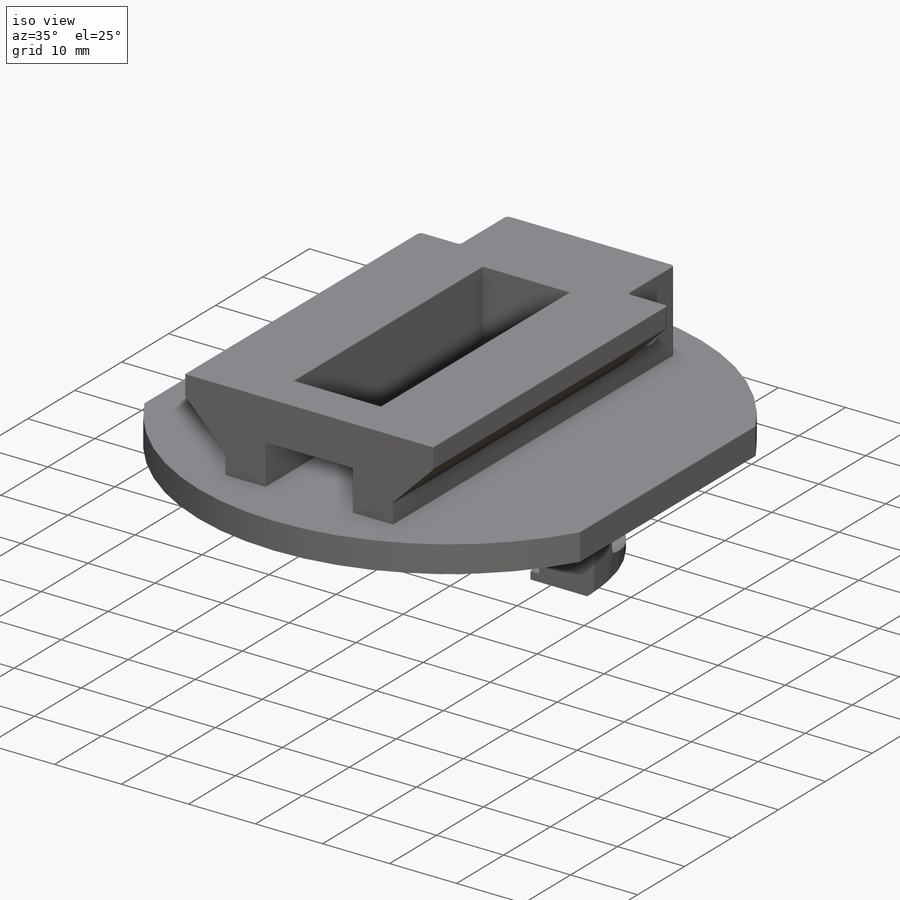
[diagram: iso view]
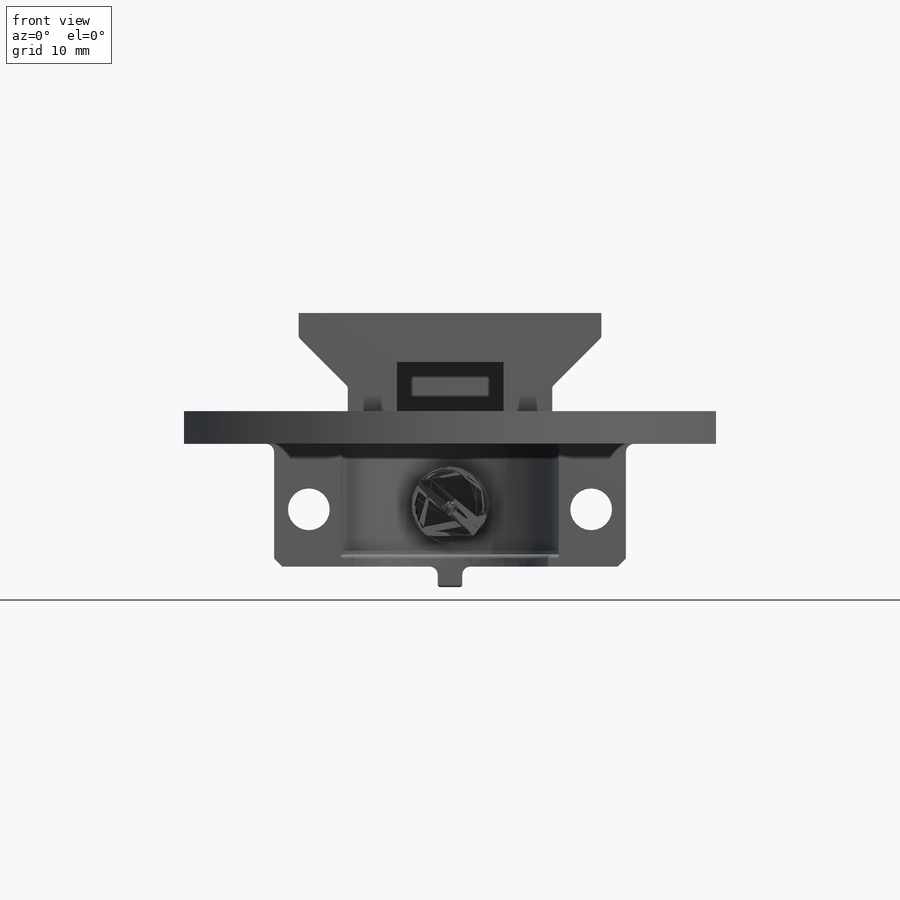
[diagram: front view]
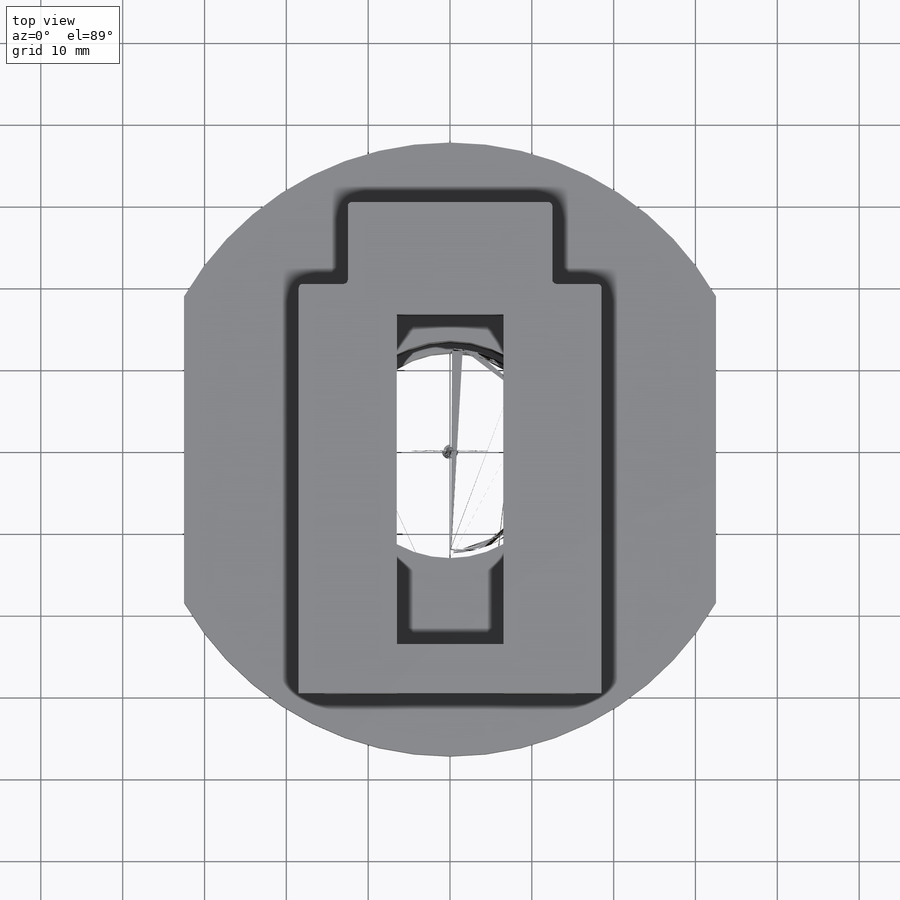
[diagram: top view]
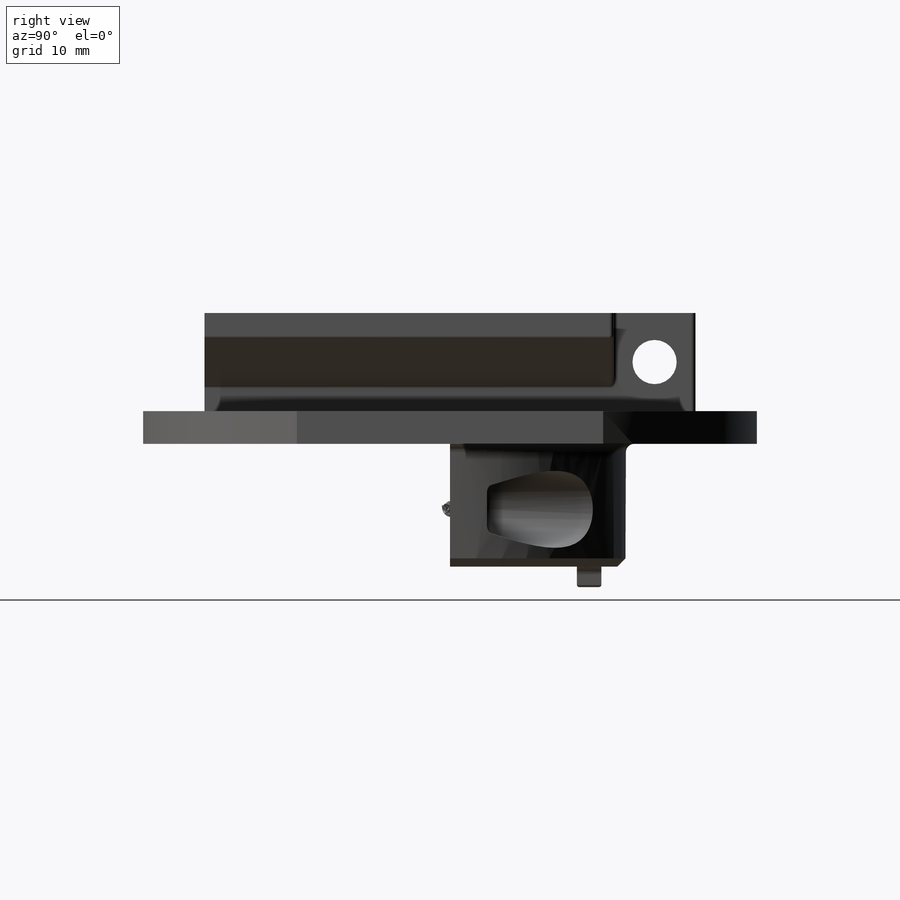
[diagram: right view]
SOLIDWORKS PART (.sldprt)
format: sldprt  version: not decoded by parser v0  size: 515,584 bytes
history: native  units: mm
features: sketch x9, cut_extrude x5, extrude x4, material x1, chamfer x1, fillet x1, move_body x1, boolean_combine x1 + 1 further entry (+17 scaffold rows collapsed; 5 parser-record rows omitted)
feature tree (46):
  scaffold x17  (default folders/planes/origin — collapsed)
  material  "ABS"
  sketch  "Sketch1"  dims[D1=43.0mm D2=26.58mm]
  extrude  "Boss-Extrude1"  Depth=15mm
  chamfer  "Chamfer1"  Distance=1mm Angle=45deg
  sketch  "Sketch2"  dims[D2=5.1mm D1=7.0mm D3=34.5mm]
  cut_extrude  "Cut-Extrude1"  [1 undecoded]
  sketch  "Sketch5"  dims[D1=9.4mm]
  cut_extrude  "Cut-Extrude3"  Depth=4.5mm
  sketch  "Sketch6"  dims[D1=12.0mm]
  extrude  "Boss-Extrude3"  Depth=1.5mm
  fillet  "Fillet1"  Radius=0.5mm
  sketch  "Sketch7"  dims[D1=75.0mm D2=13.0mm]
  extrude  "Dovetail Base"  Depth=4mm Collet Lip=0deg
  sketch  "Sketch8"  dims[D1=65.0mm]
  cut_extrude  "Side Clearances"  [1 undecoded]
  "dovetail_male"
  parser-record x5  (decoder bookkeeping rows leaked as tree rows — omitted from the tree; the rows remain in map.json)
  move_body  "Body-Move/Copy2"
  sketch  "Sketch9"  dims[D1=6.0mm]
  cut_extrude  "Wire Clearance"  [1 undecoded]
  sketch  "Sketch10"
  cut_extrude  "Clearance Extension"  [1 undecoded]
  boolean_combine  "Combine1"
  sketch  "Sketch12"  dims[D1=3.0mm D2=15.5mm]
  extrude  "Hard Stop"  Depth=2.5mm Hard Stop Fillet=0deg Print Clearance Contouring=0deg
decode coverage: 15 of 22 modeling features carry decoded parameters; 1 rows unclassified (native names shown)
note: 4 parameter values undecoded
summary: no parameter record found for 4 features
note: suppression state not decoded; provenance and decode notes live in map.json
